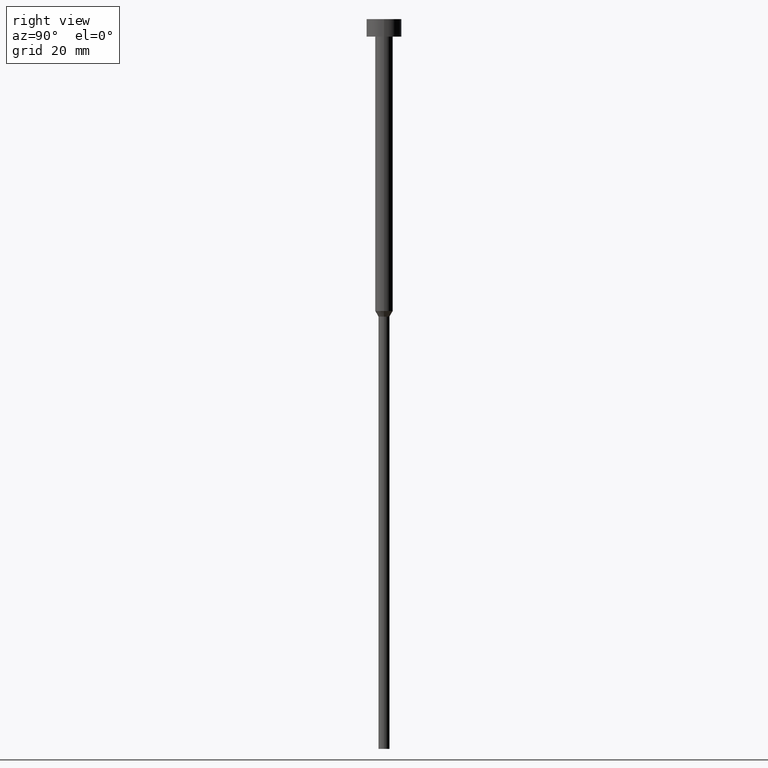
[diagram: clean part render]
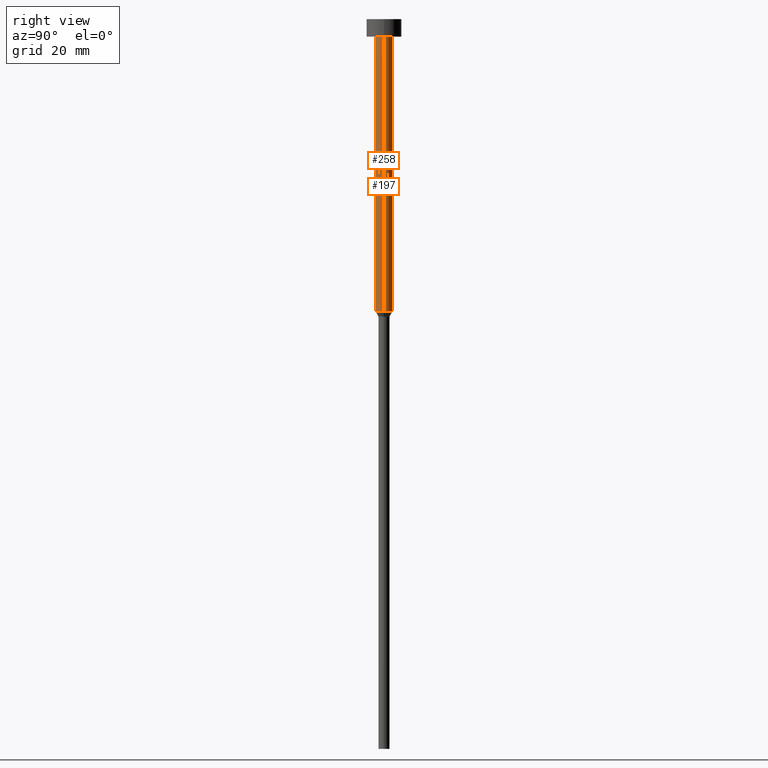
[diagram: same view with one multi-face feature highlighted, each face labeled with its STEP entity id]
A machine part, right view. The highlighted faces form ONE feature: a constant-radius fillet chain: 2 tangent blend faces with common blend radius 1.5 mm. The faces share edges in the B-rep.
Their STEP definitions:
[1] entity #258 (Cylinder):
#2 = CARTESIAN_POINT ( 'NONE',  ( 1.500000000000000000, 0.000000000000000000, -50.00000000000000000 ) ) ;
#5 = DIRECTION ( 'NONE',  ( 1.000000000000000000, 0.000000000000000000, 0.000000000000000000 ) ) ;
#6 = ORIENTED_EDGE ( 'NONE', *, *, #353, .F. ) ;
#13 = AXIS2_PLACEMENT_3D ( 'NONE', #232, #118, #313 ) ;
#15 = CARTESIAN_POINT ( 'NONE',  ( -1.500000000000000000, 1.836970198721029934E-16, -3.000000000000000888 ) ) ;
#48 = VERTEX_POINT ( 'NONE', #119 ) ;
#54 = CYLINDRICAL_SURFACE ( 'NONE', #93, 1.500000000000000000 ) ;
#65 = ORIENTED_EDGE ( 'NONE', *, *, #210, .F. ) ;
#80 = DIRECTION ( 'NONE',  ( -0.000000000000000000, -0.000000000000000000, 1.000000000000000000 ) ) ;
#82 = VERTEX_POINT ( 'NONE', #15 ) ;
#93 = AXIS2_PLACEMENT_3D ( 'NONE', #183, #115, #5 ) ;
#102 = EDGE_LOOP ( 'NONE', ( #6, #318, #301, #65 ) ) ;
#114 = LINE ( 'NONE', #150, #127 ) ;
#115 = DIRECTION ( 'NONE',  ( -0.000000000000000000, -0.000000000000000000, 1.000000000000000000 ) ) ;
#118 = DIRECTION ( 'NONE',  ( -0.000000000000000000, -0.000000000000000000, 1.000000000000000000 ) ) ;
#119 = CARTESIAN_POINT ( 'NONE',  ( 1.500000000000000000, 0.000000000000000000, -3.000000000000000888 ) ) ;
#122 = EDGE_CURVE ( 'NONE', #131, #48, #114, .T. ) ;
#127 = VECTOR ( 'NONE', #330, 1000.000000000000000 ) ;
#131 = VERTEX_POINT ( 'NONE', #2 ) ;
#141 = VECTOR ( 'NONE', #299, 1000.000000000000000 ) ;
#150 = CARTESIAN_POINT ( 'NONE',  ( 1.500000000000000000, 0.000000000000000000, 0.000000000000000000 ) ) ;
#159 = VERTEX_POINT ( 'NONE', #275 ) ;
#183 = CARTESIAN_POINT ( 'NONE',  ( 0.000000000000000000, 0.000000000000000000, 0.000000000000000000 ) ) ;
#184 = CIRCLE ( 'NONE', #13, 1.500000000000000000 ) ;
#210 = EDGE_CURVE ( 'NONE', #82, #48, #184, .T. ) ;
#213 = AXIS2_PLACEMENT_3D ( 'NONE', #271, #80, #255 ) ;
#225 = CARTESIAN_POINT ( 'NONE',  ( -1.500000000000000000, 1.836970198721029934E-16, 0.000000000000000000 ) ) ;
#232 = CARTESIAN_POINT ( 'NONE',  ( 0.000000000000000000, 0.000000000000000000, -3.000000000000000888 ) ) ;
#255 = DIRECTION ( 'NONE',  ( 1.000000000000000000, 0.000000000000000000, 0.000000000000000000 ) ) ;
#258 = ADVANCED_FACE ( 'NONE', ( #274 ), #54, .T. ) ;
#271 = CARTESIAN_POINT ( 'NONE',  ( 0.000000000000000000, 0.000000000000000000, -50.00000000000000000 ) ) ;
#274 = FACE_OUTER_BOUND ( 'NONE', #102, .T. ) ;
#275 = CARTESIAN_POINT ( 'NONE',  ( -1.500000000000000000, 1.836970198721029934E-16, -50.00000000000000000 ) ) ;
#299 = DIRECTION ( 'NONE',  ( -0.000000000000000000, -0.000000000000000000, 1.000000000000000000 ) ) ;
#301 = ORIENTED_EDGE ( 'NONE', *, *, #122, .T. ) ;
#313 = DIRECTION ( 'NONE',  ( 1.000000000000000000, 0.000000000000000000, 0.000000000000000000 ) ) ;
#318 = ORIENTED_EDGE ( 'NONE', *, *, #337, .T. ) ;
#324 = LINE ( 'NONE', #225, #141 ) ;
#330 = DIRECTION ( 'NONE',  ( -0.000000000000000000, -0.000000000000000000, 1.000000000000000000 ) ) ;
#337 = EDGE_CURVE ( 'NONE', #159, #131, #351, .T. ) ;
#351 = CIRCLE ( 'NONE', #213, 1.500000000000000000 ) ;
#353 = EDGE_CURVE ( 'NONE', #159, #82, #324, .T. ) ;
[2] entity #197 (Cylinder):
#1 = FACE_OUTER_BOUND ( 'NONE', #224, .T. ) ;
#2 = CARTESIAN_POINT ( 'NONE',  ( 1.500000000000000000, 0.000000000000000000, -50.00000000000000000 ) ) ;
#3 = CARTESIAN_POINT ( 'NONE',  ( 0.000000000000000000, 0.000000000000000000, 0.000000000000000000 ) ) ;
#7 = CIRCLE ( 'NONE', #283, 1.500000000000000000 ) ;
#14 = ORIENTED_EDGE ( 'NONE', *, *, #74, .T. ) ;
#15 = CARTESIAN_POINT ( 'NONE',  ( -1.500000000000000000, 1.836970198721029934E-16, -3.000000000000000888 ) ) ;
#37 = ORIENTED_EDGE ( 'NONE', *, *, #122, .F. ) ;
#48 = VERTEX_POINT ( 'NONE', #119 ) ;
#74 = EDGE_CURVE ( 'NONE', #131, #159, #7, .T. ) ;
#82 = VERTEX_POINT ( 'NONE', #15 ) ;
#90 = DIRECTION ( 'NONE',  ( -0.000000000000000000, -0.000000000000000000, 1.000000000000000000 ) ) ;
#110 = DIRECTION ( 'NONE',  ( -0.000000000000000000, -0.000000000000000000, 1.000000000000000000 ) ) ;
#114 = LINE ( 'NONE', #150, #127 ) ;
#119 = CARTESIAN_POINT ( 'NONE',  ( 1.500000000000000000, 0.000000000000000000, -3.000000000000000888 ) ) ;
#122 = EDGE_CURVE ( 'NONE', #131, #48, #114, .T. ) ;
#127 = VECTOR ( 'NONE', #330, 1000.000000000000000 ) ;
#131 = VERTEX_POINT ( 'NONE', #2 ) ;
#136 = AXIS2_PLACEMENT_3D ( 'NONE', #3, #338, #253 ) ;
#141 = VECTOR ( 'NONE', #299, 1000.000000000000000 ) ;
#150 = CARTESIAN_POINT ( 'NONE',  ( 1.500000000000000000, 0.000000000000000000, 0.000000000000000000 ) ) ;
#156 = CYLINDRICAL_SURFACE ( 'NONE', #136, 1.500000000000000000 ) ;
#159 = VERTEX_POINT ( 'NONE', #275 ) ;
#172 = CARTESIAN_POINT ( 'NONE',  ( 0.000000000000000000, 0.000000000000000000, -50.00000000000000000 ) ) ;
#186 = ORIENTED_EDGE ( 'NONE', *, *, #353, .T. ) ;
#197 = ADVANCED_FACE ( 'NONE', ( #1 ), #156, .T. ) ;
#224 = EDGE_LOOP ( 'NONE', ( #14, #186, #339, #37 ) ) ;
#225 = CARTESIAN_POINT ( 'NONE',  ( -1.500000000000000000, 1.836970198721029934E-16, 0.000000000000000000 ) ) ;
#227 = CIRCLE ( 'NONE', #312, 1.500000000000000000 ) ;
#229 = DIRECTION ( 'NONE',  ( 1.000000000000000000, 0.000000000000000000, 0.000000000000000000 ) ) ;
#235 = CARTESIAN_POINT ( 'NONE',  ( 0.000000000000000000, 0.000000000000000000, -3.000000000000000888 ) ) ;
#240 = EDGE_CURVE ( 'NONE', #48, #82, #227, .T. ) ;
#253 = DIRECTION ( 'NONE',  ( 1.000000000000000000, 0.000000000000000000, 0.000000000000000000 ) ) ;
#275 = CARTESIAN_POINT ( 'NONE',  ( -1.500000000000000000, 1.836970198721029934E-16, -50.00000000000000000 ) ) ;
#283 = AXIS2_PLACEMENT_3D ( 'NONE', #172, #110, #229 ) ;
#299 = DIRECTION ( 'NONE',  ( -0.000000000000000000, -0.000000000000000000, 1.000000000000000000 ) ) ;
#306 = DIRECTION ( 'NONE',  ( 1.000000000000000000, 0.000000000000000000, 0.000000000000000000 ) ) ;
#312 = AXIS2_PLACEMENT_3D ( 'NONE', #235, #90, #306 ) ;
#324 = LINE ( 'NONE', #225, #141 ) ;
#330 = DIRECTION ( 'NONE',  ( -0.000000000000000000, -0.000000000000000000, 1.000000000000000000 ) ) ;
#338 = DIRECTION ( 'NONE',  ( -0.000000000000000000, -0.000000000000000000, 1.000000000000000000 ) ) ;
#339 = ORIENTED_EDGE ( 'NONE', *, *, #240, .F. ) ;
#353 = EDGE_CURVE ( 'NONE', #159, #82, #324, .T. ) ;